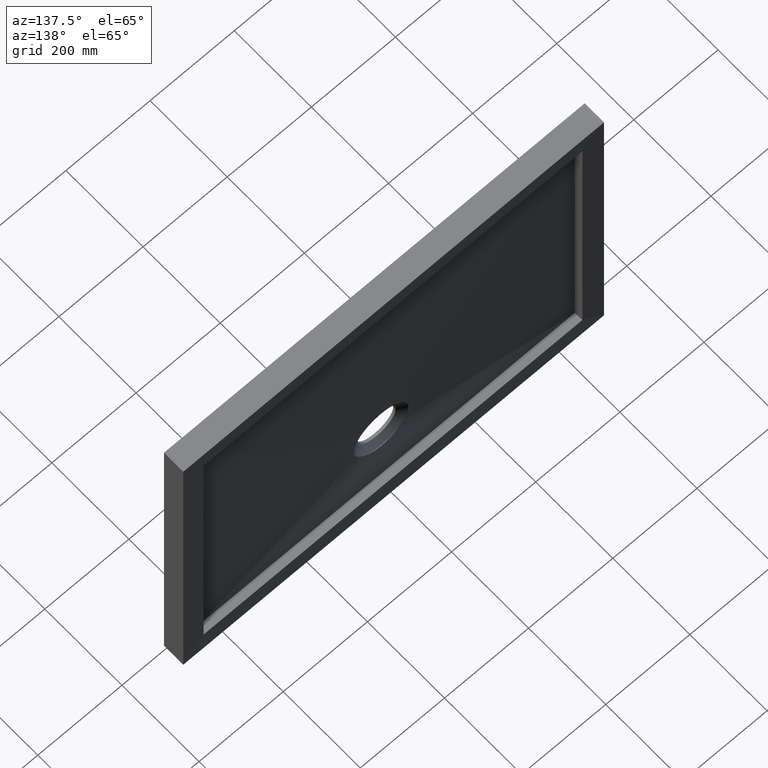
[diagram: clean part render]
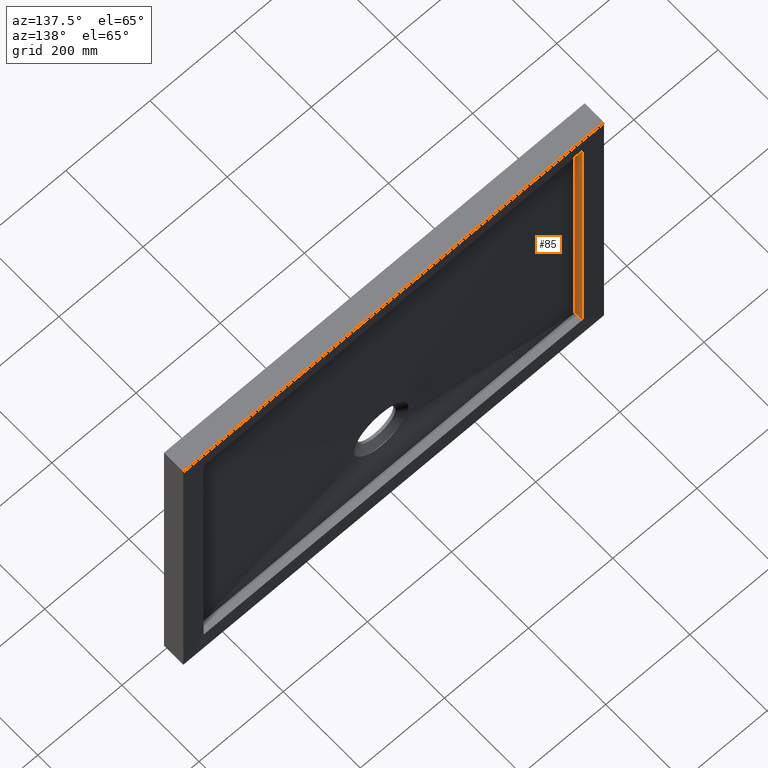
[diagram: same view with one face highlighted and labeled with its STEP entity id]
A machine part, auxiliary view. The second image highlights one B-rep face of the part: STEP entity #85.
In plain terms, the highlighted planar face has unit normal (-1, 0, 0).
Its self-contained STEP definition (entity closure, byte-faithful):
#22 = VERTEX_POINT ( 'NONE', #457 ) ;
#30 = VERTEX_POINT ( 'NONE', #982 ) ;
#32 = CARTESIAN_POINT ( 'NONE',  ( -449.9999999999998900, -1140.175425099138000, -349.9999999999998900 ) ) ;
#85 = ADVANCED_FACE ( 'NONE', ( #295 ), #119, .F. ) ;
#110 = EDGE_CURVE ( 'NONE', #534, #22, #884, .T. ) ;
#119 = PLANE ( 'NONE',  #736 ) ;
#124 = LINE ( 'NONE', #32, #838 ) ;
#136 = CARTESIAN_POINT ( 'NONE',  ( -449.9999999999997700, 48.25745360236189200, 350.0000000000002300 ) ) ;
#143 = DIRECTION ( 'NONE',  ( 1.586032892321652000E-016, 0.0000000000000000000, 1.000000000000000000 ) ) ;
#149 = EDGE_CURVE ( 'NONE', #801, #30, #154, .T. ) ;
#151 = ORIENTED_EDGE ( 'NONE', *, *, #692, .T. ) ;
#153 = CARTESIAN_POINT ( 'NONE',  ( -449.9999999999998300, 28.99999999999991500, 116.6666666666668600 ) ) ;
#154 = LINE ( 'NONE', #136, #633 ) ;
#290 = ORIENTED_EDGE ( 'NONE', *, *, #149, .T. ) ;
#295 = FACE_OUTER_BOUND ( 'NONE', #668, .T. ) ;
#315 = CARTESIAN_POINT ( 'NONE',  ( -449.9999999999998900, -1140.175425099138000, -349.9999999999998900 ) ) ;
#334 = DIRECTION ( 'NONE',  ( -0.0000000000000000000, 1.000000000000000000, -0.0000000000000000000 ) ) ;
#383 = CARTESIAN_POINT ( 'NONE',  ( -449.9999999999998300, 28.99999999999991500, -116.6666666666665300 ) ) ;
#397 = VECTOR ( 'NONE', #334, 1000.000000000000000 ) ;
#403 = LINE ( 'NONE', #723, #397 ) ;
#457 = CARTESIAN_POINT ( 'NONE',  ( -449.9999999999998900, 29.00000000000000000, -349.9999999999998900 ) ) ;
#466 = ORIENTED_EDGE ( 'NONE', *, *, #110, .T. ) ;
#504 = CARTESIAN_POINT ( 'NONE',  ( -449.9999999999997700, 28.99999999999991500, 350.0000000000002300 ) ) ;
#534 = VERTEX_POINT ( 'NONE', #504 ) ;
#571 = DIRECTION ( 'NONE',  ( -1.000000000000000000, 0.0000000000000000000, 1.586032892321652000E-016 ) ) ;
#633 = VECTOR ( 'NONE', #816, 1000.000000000000000 ) ;
#648 = EDGE_CURVE ( 'NONE', #534, #30, #403, .T. ) ;
#668 = EDGE_LOOP ( 'NONE', ( #151, #290, #980, #466 ) ) ;
#686 = CARTESIAN_POINT ( 'NONE',  ( -449.9999999999998900, 29.00000000000000000, -349.9999999999998900 ) ) ;
#692 = EDGE_CURVE ( 'NONE', #22, #801, #124, .T. ) ;
#723 = CARTESIAN_POINT ( 'NONE',  ( -449.9999999999997700, -1140.175425099138000, 350.0000000000002300 ) ) ;
#736 = AXIS2_PLACEMENT_3D ( 'NONE', #315, #571, #143 ) ;
#747 = CARTESIAN_POINT ( 'NONE',  ( -449.9999999999998900, 48.25745360236189200, -349.9999999999998900 ) ) ;
#787 = DIRECTION ( 'NONE',  ( -0.0000000000000000000, 1.000000000000000000, -0.0000000000000000000 ) ) ;
#801 = VERTEX_POINT ( 'NONE', #747 ) ;
#816 = DIRECTION ( 'NONE',  ( 1.586032892321652000E-016, 0.0000000000000000000, 1.000000000000000000 ) ) ;
#838 = VECTOR ( 'NONE', #787, 1000.000000000000000 ) ;
#884 = B_SPLINE_CURVE_WITH_KNOTS ( 'NONE', 3,
 ( #994, #153, #383, #686 ),
 .UNSPECIFIED., .F., .F.,
 ( 4, 4 ),
 ( 0.0000000000000000000, 1.000000000000000000 ),
 .UNSPECIFIED. ) ;
#980 = ORIENTED_EDGE ( 'NONE', *, *, #648, .F. ) ;
#982 = CARTESIAN_POINT ( 'NONE',  ( -449.9999999999997700, 48.25745360236189200, 350.0000000000002300 ) ) ;
#994 = CARTESIAN_POINT ( 'NONE',  ( -449.9999999999997700, 28.99999999999991500, 350.0000000000002300 ) ) ;